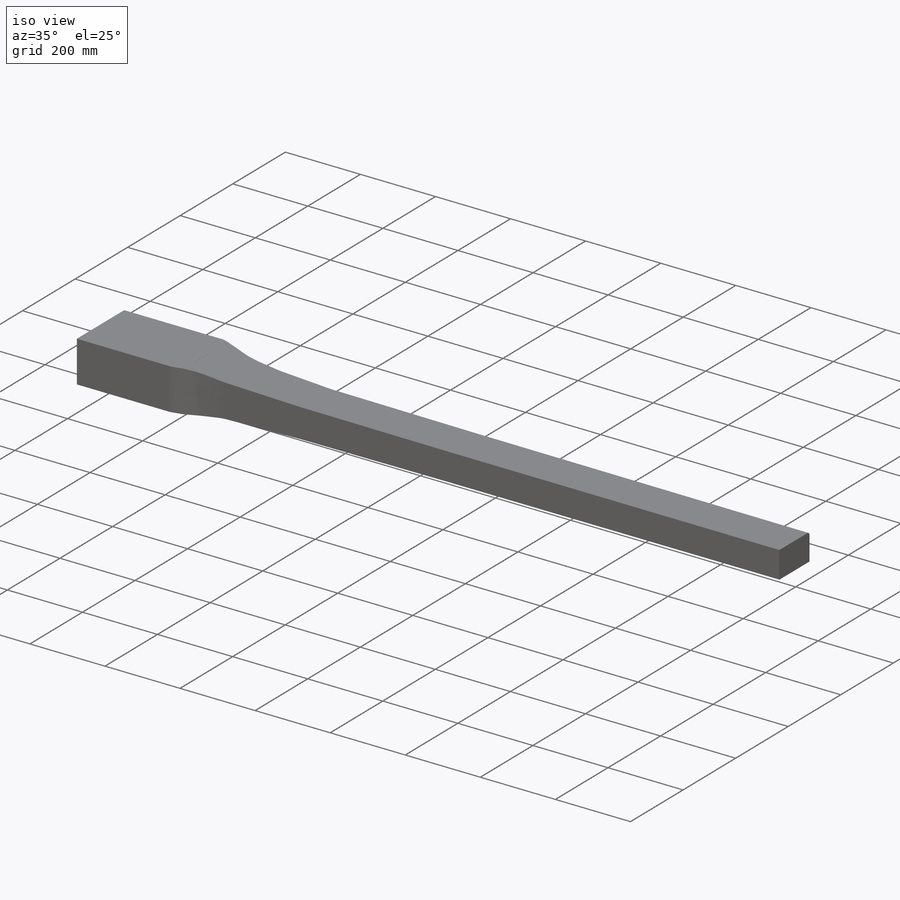
[diagram: iso view]
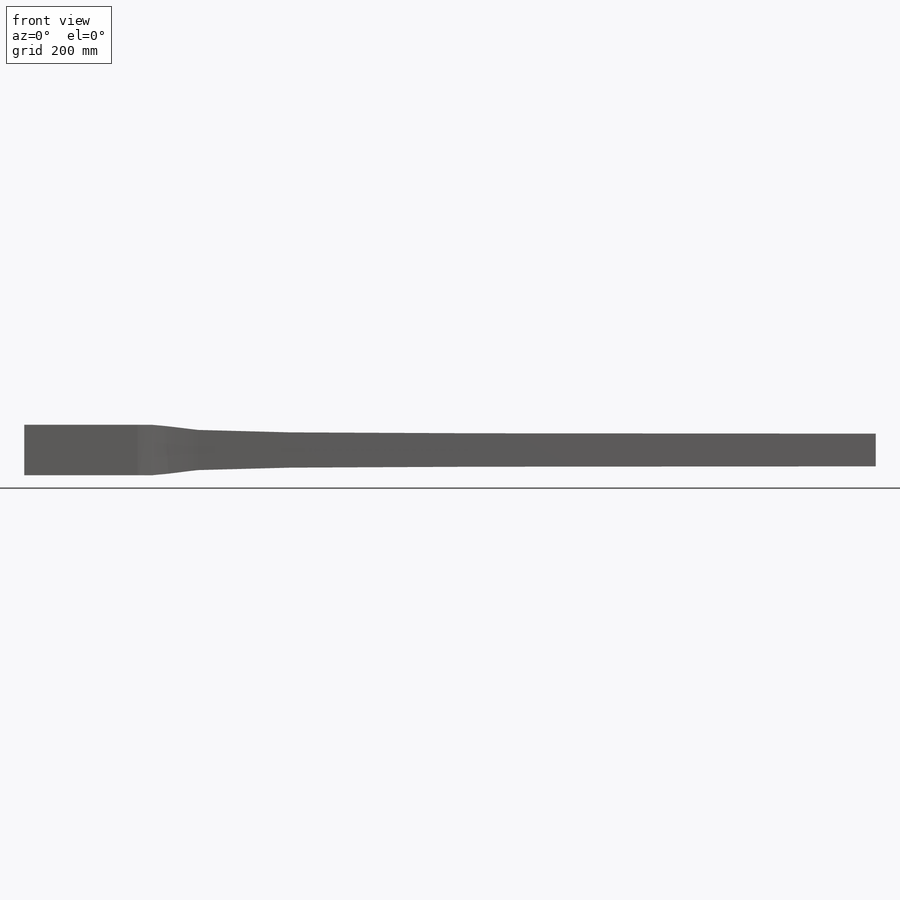
[diagram: front view]
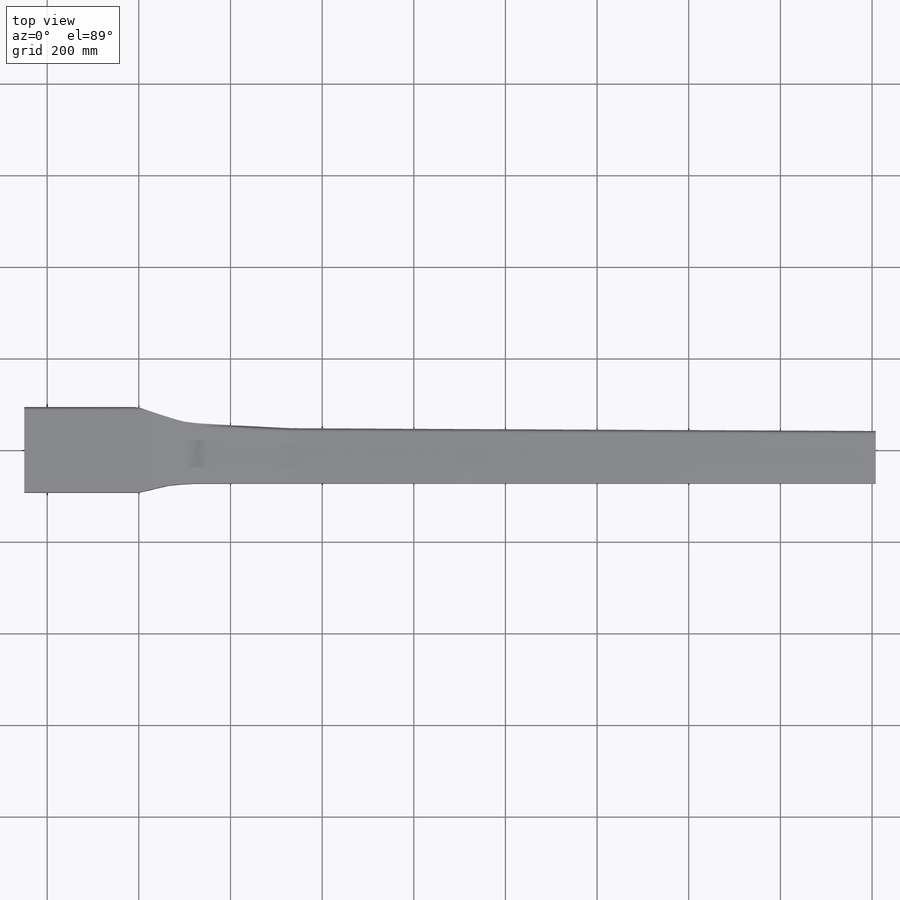
[diagram: top view]
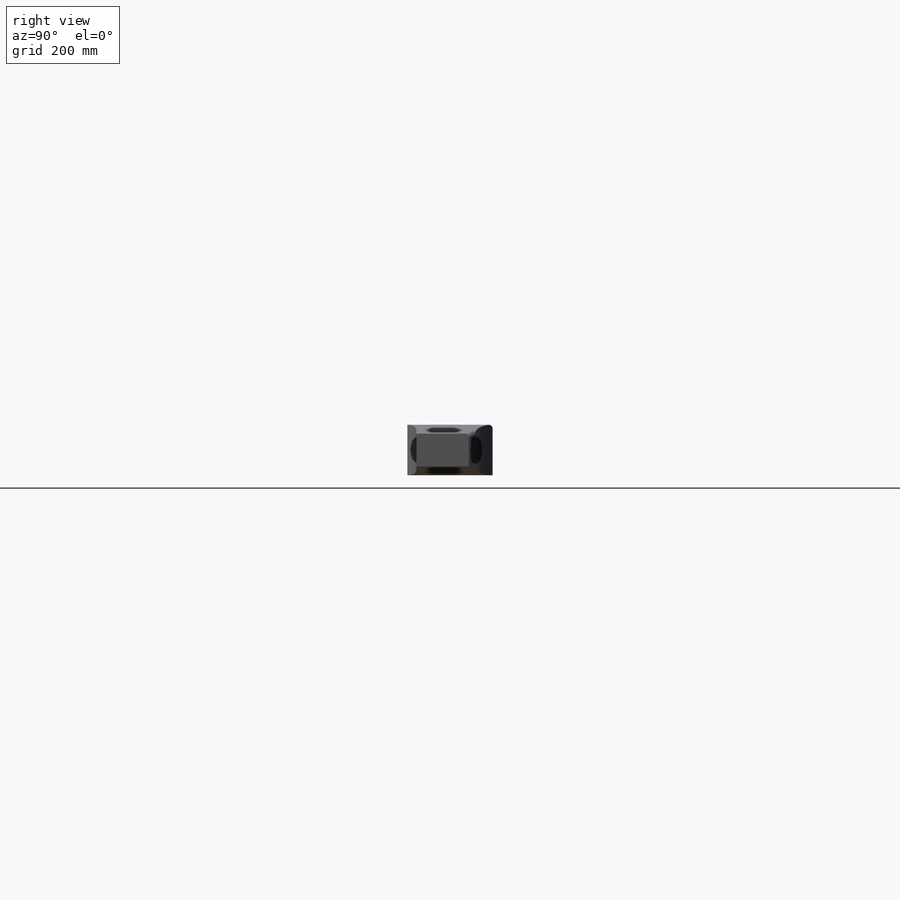
[diagram: right view]
SOLIDWORKS PART (.sldprt)
format: sldprt  version: not decoded by parser v0  size: 416,768 bytes
history: native  units: mm
features: sketch x14, plane x7, cut_extrude x4, fillet x4, material x1, extrude x1 + 2 further entries (+9 scaffold rows collapsed)
feature tree (42):
  scaffold x9  (default folders/planes/origin — collapsed)
  material  "Material <nicht festgelegt>"
  plane  "XY"
  plane  "XZ"
  plane  "YZ"
  "Y"
  "Z"
  sketch  "Länge"  dims[c1.D1=250.0mm c1.D2=130.0mm c1.D3=130.0mm c1.D4=58.0mm c1.D5=330.0mm c1.D6=330.0mm c2.D5=330.0mm c2.D6=730.0mm c2.D7=1608.0mm c2.D8=7.5mm c2.D9=13.0mm c2.D10=16.0mm c2.D11=17.5mm c2.D3=130.0mm c3.D5=330.0mm c3.D6=730.0mm]
  plane  "Ebene1"
  plane  "Ebene2"
  plane  "Ebene3"
  plane  "Ebene4"
  sketch  "Skizze2"  dims[D1=186.0mm D2=110.0mm]
  sketch  "Skizze3"  dims[D1=150.0mm D2=108.0mm]
  sketch  "Skizze4"  dims[D1=140.0mm D2=87.0mm]
  sketch  "Skizze5"  dims[D1=138.0mm D2=83.0mm D3=14.0mm]
  sketch  "Skizze6"  dims[D1=134.0mm D2=81.4mm D3=16.0mm]
  sketch  "Skizze7"  dims[D1=79.0mm D2=130.0mm]
  sketch  "Skizze8"  dims[D1=68.0mm]
  extrude  "Aufsatz-Linear austragen1"  [1 undecoded]
  sketch  "Skizze4<4>"
  sketch  "Skizze5<4>"
  sketch  "Skizze9"
  sketch  "Skizze10"
  cut_extrude  "Schnitt-Linear austragen1"  [1 undecoded]
  cut_extrude  "Schnitt-Linear austragen2"  [1 undecoded]
  sketch  "Skizze14"  dims[D1=280.0mm]
  cut_extrude  "Schnitt-Linear austragen4"  Depth=210mm
  sketch  "Skizze12"  dims[D3=500.0mm D1=240.0mm D2=240.0mm]
  cut_extrude  "Schnitt-Linear austragen3"  Depth=140mm
  fillet  "Verrundung13"  Radius=8mm
  fillet  "Verrundung14"  Radius=8mm
  fillet  "Verrundung15"  Radius=8mm
  fillet  "Verrundung16"  Radius=8mm
decode coverage: 16 of 23 modeling features carry decoded parameters; 2 rows unclassified (native names shown)
note: 3 parameter values undecoded
summary: no parameter record found for 3 features
note: suppression state not decoded; provenance and decode notes live in map.json
